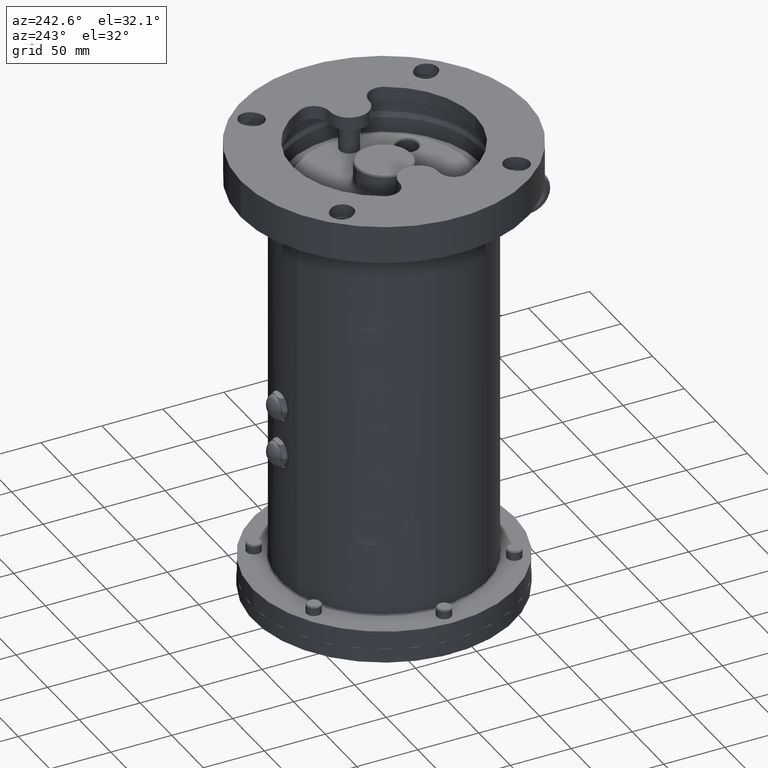
[diagram: clean part render]
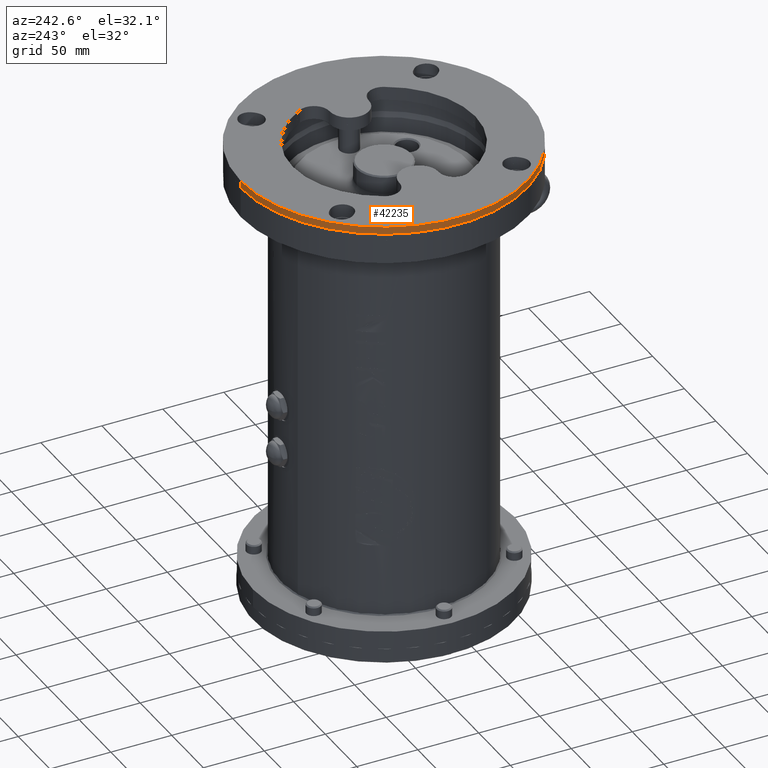
[diagram: same view with one face highlighted and labeled with its STEP entity id]
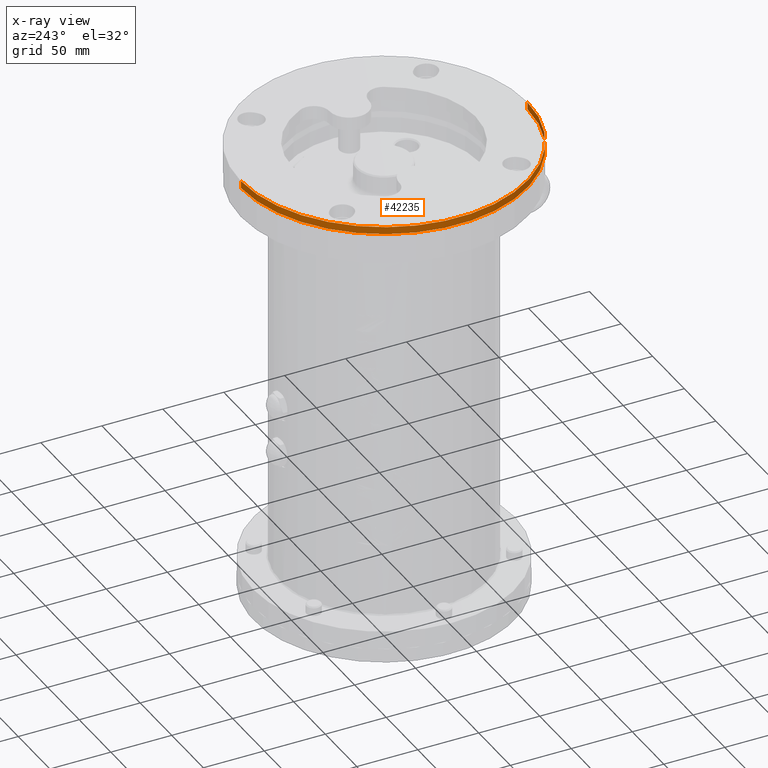
[diagram: x-ray of the same camera — body ghosted, the highlighted face saturated]
A machine part, auxiliary view. The second image highlights one B-rep face of the part: STEP entity #42235.
The next image is the same camera in x-ray: the body ghosted, the highlighted face saturated — about 0% of this face is hidden behind the body in this view.
In plain terms, the highlighted cylindrical surface (partial cylindrical patch) has radius 117.5 mm, axis along (0, -0, 1).
Its self-contained STEP definition (entity closure, byte-faithful):
#659 = LINE ( 'NONE', #40785, #17289 ) ;
#1200 = EDGE_CURVE ( 'NONE', #7253, #29889, #38552, .T. ) ;
#1302 = VERTEX_POINT ( 'NONE', #43124 ) ;
#2369 = ORIENTED_EDGE ( 'NONE', *, *, #1200, .F. ) ;
#3155 = CARTESIAN_POINT ( 'NONE',  ( -7.715511443652910400E-013, -7.665814749461490400E-013, 6.000000000000000000 ) ) ;
#4364 = DIRECTION ( 'NONE',  ( 5.497826201924079500E-017, -5.887810705998489800E-018, 1.000000000000000000 ) ) ;
#6581 = DIRECTION ( 'NONE',  ( 2.525757381022229900E-014, 1.000000000000000000, 7.381802025433221500E-018 ) ) ;
#7161 = CARTESIAN_POINT ( 'NONE',  ( -7.718810139374069700E-013, -7.665461480819130600E-013, -1.734723475976804900E-015 ) ) ;
#7253 = VERTEX_POINT ( 'NONE', #19863 ) ;
#7437 = ORIENTED_EDGE ( 'NONE', *, *, #7856, .T. ) ;
#7856 = EDGE_CURVE ( 'NONE', #1302, #29889, #18973, .T. ) ;
#13559 = DIRECTION ( 'NONE',  ( 5.497826201924079500E-017, -5.887810705998489800E-018, 1.000000000000000000 ) ) ;
#14858 = FACE_OUTER_BOUND ( 'NONE', #32666, .T. ) ;
#17289 = VECTOR ( 'NONE', #13559, 1000.000000000000000 ) ;
#18462 = CARTESIAN_POINT ( 'NONE',  ( 2.210273508653694200E-012, 117.4999999999992300, -1.042905718022146400E-015 ) ) ;
#18921 = EDGE_CURVE ( 'NONE', #30130, #1302, #659, .T. ) ;
#18973 = CIRCLE ( 'NONE', #34271, 117.5000000000000000 ) ;
#19406 = DIRECTION ( 'NONE',  ( 5.497826201924079500E-017, -5.887810705998489800E-018, 1.000000000000000000 ) ) ;
#19863 = CARTESIAN_POINT ( 'NONE',  ( 2.210438443439752100E-012, 117.4999999999992300, -1.042905718022146400E-015 ) ) ;
#20685 = CARTESIAN_POINT ( 'NONE',  ( 2.210438443439752100E-012, 117.4999999999992300, 6.000000000000000900 ) ) ;
#22089 = ORIENTED_EDGE ( 'NONE', *, *, #18921, .T. ) ;
#25867 = EDGE_CURVE ( 'NONE', #30130, #7253, #38284, .T. ) ;
#26183 = ORIENTED_EDGE ( 'NONE', *, *, #25867, .F. ) ;
#27133 = DIRECTION ( 'NONE',  ( -5.497826201924079500E-017, 5.887810705998489800E-018, -1.000000000000000000 ) ) ;
#28061 = AXIS2_PLACEMENT_3D ( 'NONE', #39410, #19406, #42867 ) ;
#29889 = VERTEX_POINT ( 'NONE', #20685 ) ;
#30130 = VERTEX_POINT ( 'NONE', #33617 ) ;
#31988 = CYLINDRICAL_SURFACE ( 'NONE', #28061, 117.5000000000000000 ) ;
#32666 = EDGE_LOOP ( 'NONE', ( #2369, #26183, #22089, #7437 ) ) ;
#33617 = CARTESIAN_POINT ( 'NONE',  ( -3.739481001852470100E-012, -117.5000000000007500, -2.426541233931464200E-015 ) ) ;
#34271 = AXIS2_PLACEMENT_3D ( 'NONE', #3155, #27133, #6581 ) ;
#34480 = AXIS2_PLACEMENT_3D ( 'NONE', #7161, #40992, #34553 ) ;
#34553 = DIRECTION ( 'NONE',  ( 2.525757381022229600E-014, 1.000000000000000000, 5.887810705997100000E-018 ) ) ;
#38284 = CIRCLE ( 'NONE', #34480, 117.5000000000000000 ) ;
#38552 = LINE ( 'NONE', #18462, #39614 ) ;
#39410 = CARTESIAN_POINT ( 'NONE',  ( -7.718810139374069700E-013, -7.665461480819130600E-013, -1.734723475976804900E-015 ) ) ;
#39614 = VECTOR ( 'NONE', #4364, 1000.000000000000000 ) ;
#40785 = CARTESIAN_POINT ( 'NONE',  ( -3.739645936638527100E-012, -117.5000000000007500, -2.426541233931464200E-015 ) ) ;
#40992 = DIRECTION ( 'NONE',  ( -5.497826201924079500E-017, 5.887810705998489800E-018, -1.000000000000000000 ) ) ;
#42235 = ADVANCED_FACE ( 'NONE', ( #14858 ), #31988, .T. ) ;
#42867 = DIRECTION ( 'NONE',  ( -2.525757381022230200E-014, -1.000000000000000000, -5.887810705997100000E-018 ) ) ;
#43124 = CARTESIAN_POINT ( 'NONE',  ( -3.739481001852470100E-012, -117.5000000000007500, 5.999999999999999100 ) ) ;